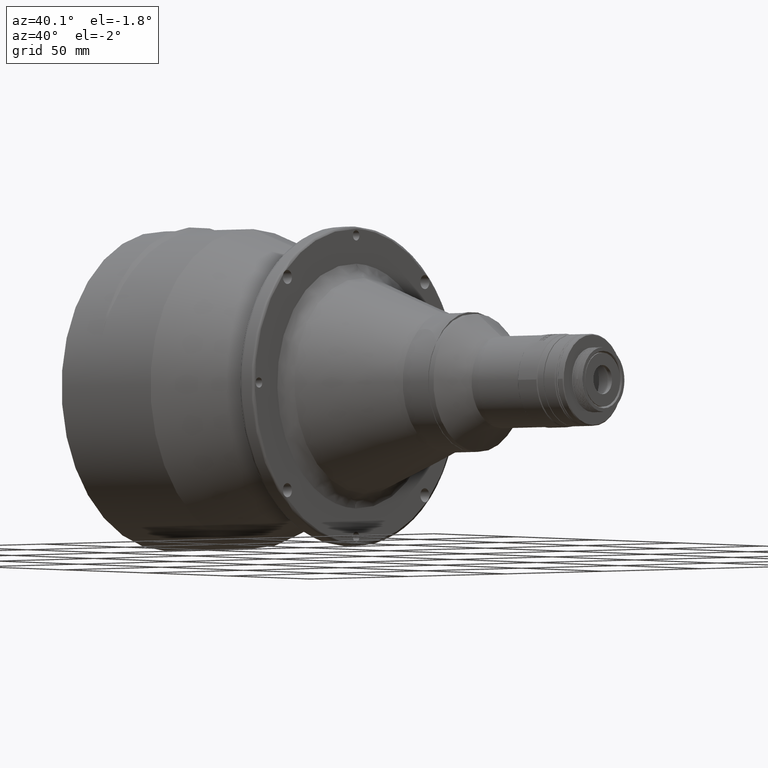
[diagram: clean part render]
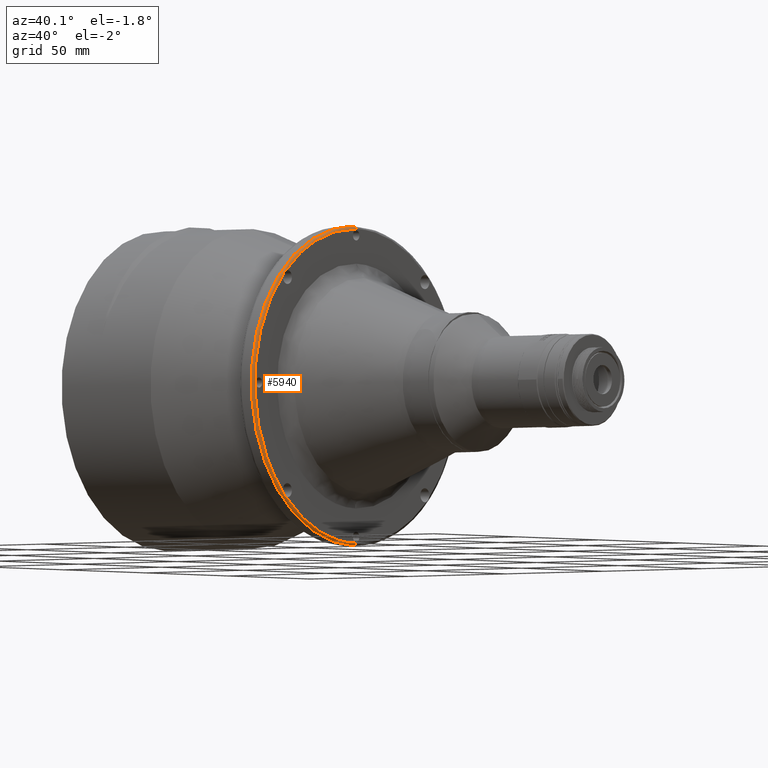
[diagram: same view with one face highlighted and labeled with its STEP entity id]
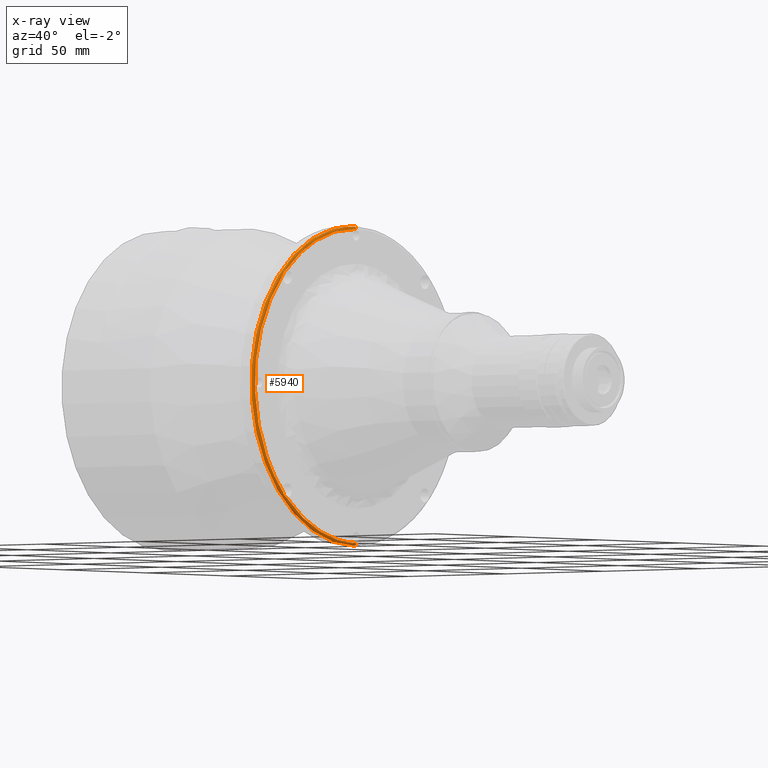
[diagram: x-ray of the same camera — body ghosted, the highlighted face saturated]
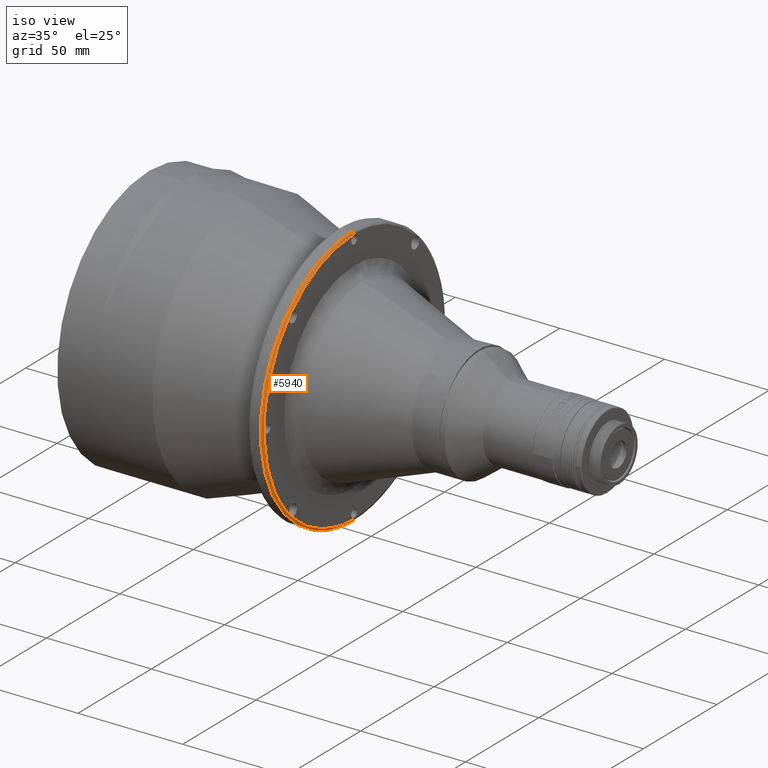
[diagram: same view with one face highlighted and labeled with its STEP entity id]
A machine part, auxiliary view. The second image highlights one B-rep face of the part: STEP entity #5940.
The next image is the same camera in x-ray: the body ghosted, the highlighted face saturated — about 0% of this face is hidden behind the body in this view.
A second angle (iso view) of the same face is appended — the face is thin or edge-on in the first view.
In plain terms, the highlighted face is a freeform B-spline surface patch.
Its self-contained STEP definition (entity closure, byte-faithful):
#74 = CARTESIAN_POINT ( 'NONE',  ( -58.15176095766817355, -42.65216182587655425, 42.48124056063878129 ) ) ;
#250 = CARTESIAN_POINT ( 'NONE',  ( -58.15176095799998990, -9.842066166619165557, -62.53253675466828554 ) ) ;
#276 = ORIENTED_EDGE ( 'NONE', *, *, #4737, .T. ) ;
#334 = CARTESIAN_POINT ( 'NONE',  ( -58.57170719199999809, -125.1264408449999905, 60.73821886200001074 ) ) ;
#445 = CARTESIAN_POINT ( 'NONE',  ( -58.15176095799998279, -4.933317926342504656, -63.12696430477796383 ) ) ;
#538 = CARTESIAN_POINT ( 'NONE',  ( -58.15176095799998990, -57.08639563748993595, 21.07475877388279528 ) ) ;
#630 = CARTESIAN_POINT ( 'NONE',  ( -58.15176095799998990, -47.64105142777417967, 37.06718840850981422 ) ) ;
#642 = CARTESIAN_POINT ( 'NONE',  ( -59.15176095687567681, -2.806050888397907364E-09, 60.67499843884620958 ) ) ;
#729 = CARTESIAN_POINT ( 'NONE',  ( -58.15176095799999700, -59.05271974078382868, 15.38145915108798434 ) ) ;
#819 = CARTESIAN_POINT ( 'NONE',  ( -58.15176095800000411, -61.08519457229164118, -9.029587449783550213 ) ) ;
#895 = CARTESIAN_POINT ( 'NONE',  ( -58.15176095799999700, -16.92201663830093850, 57.31431588072331351 ) ) ;
#919 = CARTESIAN_POINT ( 'NONE',  ( -58.15176095800000411, -60.98538582940739161, 6.143538469644775901 ) ) ;
#989 = CARTESIAN_POINT ( 'NONE',  ( -58.15176095799998990, -3.908932613747129192, 59.55116567174300002 ) ) ;
#1015 = CARTESIAN_POINT ( 'NONE',  ( -58.15176095799998990, -55.71435638722509509, -27.89902966687137109 ) ) ;
#1033 = CARTESIAN_POINT ( 'NONE',  ( -58.15176095799998279, -26.54451006259987267, -57.30263005241693719 ) ) ;
#1089 = CARTESIAN_POINT ( 'NONE',  ( -58.15176095799998279, -13.13798009043212822, 58.25814231455991887 ) ) ;
#1105 = CARTESIAN_POINT ( 'NONE',  ( -58.15176095799998990, -52.11242318959065045, -34.48920994439318832 ) ) ;
#1128 = CARTESIAN_POINT ( 'NONE',  ( -58.15176095800000411, -29.07469425299182575, -56.03712151471894032 ) ) ;
#1182 = CARTESIAN_POINT ( 'NONE',  ( -58.15176095800001121, -31.38230230672270338, 51.06547347449567553 ) ) ;
#1222 = CARTESIAN_POINT ( 'NONE',  ( -58.15176095800000411, -19.17566966193284017, -60.26673485452391077 ) ) ;
#1275 = EDGE_CURVE ( 'NONE', #6905, #5747, #7453, .T. ) ;
#1280 = CARTESIAN_POINT ( 'NONE',  ( -58.15176095799998990, -22.44258117606450753, 55.44952984566160126 ) ) ;
#1382 = CARTESIAN_POINT ( 'NONE',  ( -58.15176095568698855, -42.84329291927785732, -46.06232102100887715 ) ) ;
#1798 = CARTESIAN_POINT ( 'NONE',  ( -58.15176095799999700, -4.754405145101627816, -63.14098732012389803 ) ) ;
#1901 = CARTESIAN_POINT ( 'NONE',  ( -58.15176095800000411, -3.052578221421126781, -63.26818939543202447 ) ) ;
#1998 = CARTESIAN_POINT ( 'NONE',  ( -58.15176095799999700, -47.74797684251571184, 36.93559396730820055 ) ) ;
#2094 = CARTESIAN_POINT ( 'NONE',  ( -58.15176095799998990, -58.71442651729278595, 16.47478402297204880 ) ) ;
#2192 = CARTESIAN_POINT ( 'NONE',  ( -58.15176095800000411, -61.23878339347579214, -7.493165437491753345 ) ) ;
#2290 = CARTESIAN_POINT ( 'NONE',  ( -58.15176095799999700, -56.01301592974465393, 23.57612290175801917 ) ) ;
#2362 = CARTESIAN_POINT ( 'NONE',  ( -58.15176095799999700, -9.410797432444363508, 58.95071317014951973 ) ) ;
#2379 = CARTESIAN_POINT ( 'NONE',  ( -58.15176095799999700, -56.53033276561566112, 22.39478064972809790 ) ) ;
#2454 = CARTESIAN_POINT ( 'NONE',  ( -58.15176095799998990, -36.71699837739195260, 47.51208599681574896 ) ) ;
#2475 = CARTESIAN_POINT ( 'NONE',  ( -58.15176095799998279, -56.79477908220235349, -25.41751923400531510 ) ) ;
#2492 = B_SPLINE_CURVE_WITH_KNOTS ( 'NONE', 3,
 ( #11376, #6739, #9506, #5257, #11475, #630, #1998, #18952, #8226, #12657, #12841, #8418, #17100, #6644, #5457, #18669, #6928, #6831, #11083, #9789, #9894, #3576, #12559, #9601, #3479, #15902, #8038, #2290, #15604, #2379, #5165, #14046, #14231, #538, #6548, #11179, #18571, #14422, #15806, #2094, #729, #8129, #18759, #3775, #17188, #18855, #5357, #5062, #15516, #919, #12751, #3873, #14136, #3669, #11274, #8322, #17285, #9699, #15703, #2192, #14329, #819, #12942, #19242, #5936, #4347, #15996, #14519, #5845, #11764, #8902, #4252, #11667, #10265, #9983, #11857, #19430, #17479, #16280, #17665, #2475, #8797, #7327, #8516, #1015, #7033, #13430, #2577, #7124, #17572, #3973, #14905, #13037, #1105, #7224, #5649, #4065, #19338, #19047, #13131, #4161, #5749, #19142, #17765, #5547, #2766, #8702, #7424, #11569, #10077 ),
 .UNSPECIFIED., .F., .F.,
 ( 4, 1, 1, 1, 1, 2, 2, 1, 1, 1, 1, 2, 2, 1, 1, 1, 1, 2, 2, 1, 1, 1, 1, 2, 2, 1, 1, 1, 2, 2, 1, 1, 1, 2, 2, 1, 1, 2, 2, 2, 1, 1, 2, 2, 1, 1, 1, 2, 2, 1, 1, 1, 2, 2, 1, 1, 1, 1, 2, 2, 1, 1, 1, 1, 2, 2, 1, 1, 1, 1, 2, 2, 1, 1, 1, 1, 2, 2, 4 ),
 ( 0.000000000000000000, 0.03124999999999449746, 0.04687499999999183292, 0.05468749999999059780, 0.05859374999998998024, 0.06054687499998976513, 0.06249999999998955003, 0.09374999999998782918, 0.1093749999999869965, 0.1171874999999865108, 0.1210937499999862055, 0.1230468749999861083, 0.1249999999999860112, 0.1562499999999853451, 0.1718749999999849565, 0.1796874999999848455, 0.1835937499999847899, 0.1855468749999848455, 0.1874999999999848732, 0.2187499999999845401, 0.2343749999999844846, 0.2421874999999845124, 0.2460937499999845957, 0.2480468749999845957, 0.2499999999999846234, 0.2812499999999854561, 0.2968749999999858447, 0.3046874999999860667, 0.3085937499999860112, 0.3124999999999860112, 0.3437499999999854006, 0.3593749999999850675, 0.3671874999999849010, 0.3710937499999848455, 0.3749999999999847344, 0.4062499999999844014, 0.4218749999999842348, 0.4296874999999841238, 0.4374999999999840128, 0.4999999999999832356, 0.5312499999999827915, 0.5468749999999826805, 0.5546874999999825695, 0.5624999999999825695, 0.5937499999999821254, 0.6093749999999820144, 0.6171874999999819034, 0.6210937499999819034, 0.6249999999999819034, 0.6562499999999821254, 0.6718749999999822364, 0.6796874999999823475, 0.6835937499999824585, 0.6874999999999825695, 0.7187499999999827915, 0.7343749999999829026, 0.7421874999999830136, 0.7460937499999830136, 0.7480468749999831246, 0.7499999999999831246, 0.7812499999999849010, 0.7968749999999856781, 0.8046874999999861222, 0.8085937499999863443, 0.8105468749999864553, 0.8124999999999866773, 0.8437499999999884537, 0.8593749999999892308, 0.8671874999999896749, 0.8710937499999898970, 0.8730468749999902300, 0.8749999999999905631, 0.9062499999999943379, 0.9218749999999962252, 0.9296874999999971134, 0.9335937499999973355, 0.9355468749999975575, 0.9374999999999977796, 1.000000000000000000 ),
 .UNSPECIFIED. ) ;
#2552 = CARTESIAN_POINT ( 'NONE',  ( -58.15176095799998990, -24.07409030828857865, 54.77126835718232911 ) ) ;
#2577 = CARTESIAN_POINT ( 'NONE',  ( -58.15176095799998990, -54.36095776578482486, -30.58543710833789220 ) ) ;
#2651 = CARTESIAN_POINT ( 'NONE',  ( -58.15176095799998990, -32.39965975916356200, 50.46103910767353540 ) ) ;
#2690 = CARTESIAN_POINT ( 'NONE',  ( -58.15176095799999700, -20.18759694161460772, -59.91727162588167488 ) ) ;
#2748 = CARTESIAN_POINT ( 'NONE',  ( -58.15176095799998990, -14.53144460077801448, 57.93357765153639605 ) ) ;
#2766 = CARTESIAN_POINT ( 'NONE',  ( -58.15176095800003253, -47.96328614558298398, -40.31885156735932441 ) ) ;
#2788 = CARTESIAN_POINT ( 'NONE',  ( -58.15176095799999700, -37.96121705095995935, -50.21259493476397040 ) ) ;
#2836 = CARTESIAN_POINT ( 'NONE',  ( -58.15176095766817355, -44.30624212096656578, 40.82716026595728920 ) ) ;
#2949 = CARTESIAN_POINT ( 'NONE',  ( -58.15176095570455317, -44.23734687419894840, -44.66821845718941830 ) ) ;
#3182 = CARTESIAN_POINT ( 'NONE',  ( -58.15176095799997569, -13.78316739521924106, -61.76706165331865606 ) ) ;
#3270 = CARTESIAN_POINT ( 'NONE',  ( -59.25159437399999973, 0.000000000000000000, -64.32000572599999089 ) ) ;
#3280 = CARTESIAN_POINT ( 'NONE',  ( -58.15176095799998990, -5.290982903061332010, -63.09758245991553594 ) ) ;
#3311 = VERTEX_POINT ( 'NONE', #19452 ) ;
#3316 = EDGE_CURVE ( 'NONE', #16553, #17437, #11700, .T. ) ;
#3378 = CARTESIAN_POINT ( 'NONE',  ( -58.15176095799998990, -6.005670513447391556, -63.03347551350820055 ) ) ;
#3416 = EDGE_CURVE ( 'NONE', #18497, #3311, #2492, .T. ) ;
#3479 = CARTESIAN_POINT ( 'NONE',  ( -58.15176095799999700, -54.12919710762756154, 27.36889729955321116 ) ) ;
#3576 = CARTESIAN_POINT ( 'NONE',  ( -58.15176095799999700, -53.95823960879874193, 27.68403954037476211 ) ) ;
#3605 = DIRECTION ( 'NONE',  ( -1.110223024628799106E-16, 1.000000000000000000, 0.000000000000000000 ) ) ;
#3669 = CARTESIAN_POINT ( 'NONE',  ( -58.15176095799998279, -61.39614214250406832, 2.302068584257906725 ) ) ;
#3732 = VERTEX_POINT ( 'NONE', #15783 ) ;
#3775 = CARTESIAN_POINT ( 'NONE',  ( -58.15176095800000411, -60.08030248640712045, 11.31733828190260915 ) ) ;
#3855 = CARTESIAN_POINT ( 'NONE',  ( -58.15176095800000411, -15.55548599150045952, 57.68272363439709238 ) ) ;
#3873 = CARTESIAN_POINT ( 'NONE',  ( -58.15176095799998279, -61.13522169437942466, 4.868328155026717674 ) ) ;
#3933 = CARTESIAN_POINT ( 'NONE',  ( -58.15176095790828015, 0.000000000000000000, 60.26078487648292281 ) ) ;
#3952 = CARTESIAN_POINT ( 'NONE',  ( -58.15176095799998990, -33.85271254036162958, 49.54186224338517519 ) ) ;
#3973 = CARTESIAN_POINT ( 'NONE',  ( -58.15176095800000411, -54.18672411843122205, -30.91198258408654809 ) ) ;
#4041 = ORIENTED_EDGE ( 'NONE', *, *, #3416, .F. ) ;
#4043 = CARTESIAN_POINT ( 'NONE',  ( -58.15176095800001121, -25.65888497193845907, 54.06661430948134495 ) ) ;
#4065 = CARTESIAN_POINT ( 'NONE',  ( -58.15176095799999700, -51.33110056846822289, -35.69787579819620049 ) ) ;
#4087 = CARTESIAN_POINT ( 'NONE',  ( -58.15176095800001832, -25.90380719055613312, -57.60358742350309313 ) ) ;
#4139 = CARTESIAN_POINT ( 'NONE',  ( -58.15176095799998990, -24.88381302751438540, 54.41695982951960531 ) ) ;
#4161 = CARTESIAN_POINT ( 'NONE',  ( -58.15176095799997569, -49.88011803271271560, -37.82154608932749085 ) ) ;
#4220 = CARTESIAN_POINT ( 'NONE',  ( -58.18350409470966156, -43.80598079252890642, 41.69664191509214390 ) ) ;
#4230 = CARTESIAN_POINT ( 'NONE',  ( -58.15176095800000411, -4.527838377568472517, 59.50809883228387775 ) ) ;
#4252 = CARTESIAN_POINT ( 'NONE',  ( -58.15176095799998279, -59.00986051308267832, -19.15128841551307204 ) ) ;
#4275 = CARTESIAN_POINT ( 'NONE',  ( -58.15176095800000411, -32.27266801541609453, -54.17832292226994895 ) ) ;
#4347 = CARTESIAN_POINT ( 'NONE',  ( -58.15176095799998279, -60.36388460042886095, -13.59224560260115666 ) ) ;
#4371 = CARTESIAN_POINT ( 'NONE',  ( -58.15176095800000411, -31.47479007192853473, -54.66048976195447295 ) ) ;
#4525 = CARTESIAN_POINT ( 'NONE',  ( -58.15176095766816644, -44.30624212108618565, -44.47716338762558763 ) ) ;
#4553 = CARTESIAN_POINT ( 'NONE',  ( -58.08854053499999992, -124.1601075299999906, -63.90505532600000294 ) ) ;
#4563 = CARTESIAN_POINT ( 'NONE',  ( -58.15176095800000411, -14.69574099898799702, -61.54339080735035594 ) ) ;
#4660 = CARTESIAN_POINT ( 'NONE',  ( -58.15176095799998990, -10.98136190825384517, -62.33946587445440457 ) ) ;
#4722 = CARTESIAN_POINT ( 'NONE',  ( -58.18352611348920078, -43.80517804486486000, -45.34757400788477355 ) ) ;
#4737 = EDGE_CURVE ( 'NONE', #16553, #3311, #15502, .T. ) ;
#4749 = CARTESIAN_POINT ( 'NONE',  ( -58.57170719199999809, 0.000000000000000000, 60.73821886200000364 ) ) ;
#5062 = CARTESIAN_POINT ( 'NONE',  ( -58.15176095799998279, -60.46836761205935318, 9.439258893389222749 ) ) ;
#5094 = B_SPLINE_CURVE_WITH_KNOTS ( 'NONE', 3,
 ( #2836, #14486, #5518, #8483, #4220, #11532, #19106, #17450, #11634, #9950 ),
 .UNSPECIFIED., .F., .F.,
 ( 4, 2, 2, 2, 4 ),
 ( 6.938893903907228378E-18, 0.0006010452545067130432, 0.001202090509013419148, 0.001803135763520125143, 0.002404181018026831356 ),
 .UNSPECIFIED. ) ;
#5165 = CARTESIAN_POINT ( 'NONE',  ( -58.15176095800000411, -56.60249559666745967, 22.22517842809605426 ) ) ;
#5247 = ORIENTED_EDGE ( 'NONE', *, *, #10862, .T. ) ;
#5257 = CARTESIAN_POINT ( 'NONE',  ( -58.15176095799999700, -46.88400482842128270, 37.98076529859832107 ) ) ;
#5357 = CARTESIAN_POINT ( 'NONE',  ( -58.15176095799998990, -60.23769324386170609, 10.57204129906379819 ) ) ;
#5438 = CARTESIAN_POINT ( 'NONE',  ( -58.15176095800001121, -31.29710147362098382, 51.11593237012294111 ) ) ;
#5457 = CARTESIAN_POINT ( 'NONE',  ( -58.15176095799999700, -51.06885866056610013, 32.44196458760479373 ) ) ;
#5518 = CARTESIAN_POINT ( 'NONE',  ( -58.16137285507321053, -44.14884760643148809, 41.19813888990939432 ) ) ;
#5529 = CARTESIAN_POINT ( 'NONE',  ( -58.15176095800000411, -9.106665922338981645, 58.99717281197006713 ) ) ;
#5547 = CARTESIAN_POINT ( 'NONE',  ( -58.15176095799998990, -48.03623503659225236, -40.22778015985624478 ) ) ;
#5568 = CARTESIAN_POINT ( 'NONE',  ( -58.15176095800001121, -25.81200631468740880, -57.64606734154700973 ) ) ;
#5627 = CARTESIAN_POINT ( 'NONE',  ( -58.15176095799999700, -40.90090072721518055, 44.16712201819695593 ) ) ;
#5649 = CARTESIAN_POINT ( 'NONE',  ( -58.15176095800001121, -51.43015065081648629, -35.54761627069895980 ) ) ;
#5673 = CARTESIAN_POINT ( 'NONE',  ( -58.15176095800000411, -21.73228481250202648, -59.36114126163237614 ) ) ;
#5723 = CARTESIAN_POINT ( 'NONE',  ( -58.15176095799998990, -8.041074512473400659, 59.14947240263425243 ) ) ;
#5747 = VERTEX_POINT ( 'NONE', #642 ) ;
#5749 = CARTESIAN_POINT ( 'NONE',  ( -58.15176095799998990, -48.90015187217172610, -39.12658458074468371 ) ) ;
#5823 = CARTESIAN_POINT ( 'NONE',  ( -58.15176095799998990, -4.480236493953957400, 59.51159411200806204 ) ) ;
#5845 = CARTESIAN_POINT ( 'NONE',  ( -58.15176095799999700, -60.06034875371722848, -15.09302780340173200 ) ) ;
#5864 = CARTESIAN_POINT ( 'NONE',  ( -58.15176095799999700, -37.14697449045019084, -50.83881119460603060 ) ) ;
#5936 = CARTESIAN_POINT ( 'NONE',  ( -58.15176095799999700, -60.43721732350773124, -13.21398534992027152 ) ) ;
#5940 = ADVANCED_FACE ( 'NONE', ( #18265 ), #15511, .T. ) ;
#6030 = EDGE_LOOP ( 'NONE', ( #5247, #12495, #11661, #14724, #12473, #14703, #276, #4041 ) ) ;
#6047 = CARTESIAN_POINT ( 'NONE',  ( -58.08854053499999992, 0.000000000000000000, 60.25505220400000184 ) ) ;
#6061 = CARTESIAN_POINT ( 'NONE',  ( -58.15176095800000411, -7.432476362012927495, -62.88388859396416564 ) ) ;
#6237 = CARTESIAN_POINT ( 'NONE',  ( -58.08854053499999992, 0.000000000000000000, -63.90505532600000294 ) ) ;
#6460 = CARTESIAN_POINT ( 'NONE',  ( -58.15176095760179464, 0.000000000000000000, -63.32500154886976418 ) ) ;
#6515 = CARTESIAN_POINT ( 'NONE',  ( -58.56597451979076396, 0.000000000000000000, -64.32500156107056455 ) ) ;
#6548 = CARTESIAN_POINT ( 'NONE',  ( -58.15176095799998990, -57.63432795638860284, 19.67607364429613881 ) ) ;
#6644 = CARTESIAN_POINT ( 'NONE',  ( -58.15176095799997569, -50.97127290693147472, 32.58725045979403490 ) ) ;
#6739 = CARTESIAN_POINT ( 'NONE',  ( -58.15176095799998990, -44.93340250216242282, 40.17567817872686220 ) ) ;
#6831 = CARTESIAN_POINT ( 'NONE',  ( -58.15176095799999700, -51.73021520607119328, 31.44896457006098700 ) ) ;
#6837 = CARTESIAN_POINT ( 'NONE',  ( -58.15176095766816644, -42.65216182620745400, -46.13124368251830987 ) ) ;
#6905 = VERTEX_POINT ( 'NONE', #10481 ) ;
#6907 = CARTESIAN_POINT ( 'NONE',  ( -58.15176095799999700, -26.66965990889801930, 53.60192382256818888 ) ) ;
#6928 = CARTESIAN_POINT ( 'NONE',  ( -58.15176095799999700, -51.16527445767150084, 32.29783869269169827 ) ) ;
#6995 = CARTESIAN_POINT ( 'NONE',  ( -59.15176095687567681, -2.806050888397907778E-09, 60.67499843884620958 ) ) ;
#7011 = CARTESIAN_POINT ( 'NONE',  ( -58.15176095799998990, -31.00653415323083095, 51.28692475562071706 ) ) ;
#7033 = CARTESIAN_POINT ( 'NONE',  ( -58.15176095799998990, -54.95495175505840990, -29.44072868265886456 ) ) ;
#7055 = CARTESIAN_POINT ( 'NONE',  ( -58.15176095800000411, -26.11773734010163395, -57.50395362262275256 ) ) ;
#7106 = CARTESIAN_POINT ( 'NONE',  ( -58.15176095799998990, -39.05630777012388677, 45.74352562685240997 ) ) ;
#7124 = CARTESIAN_POINT ( 'NONE',  ( -58.15176095799998279, -54.27435573052082418, -30.74814075228048793 ) ) ;
#7143 = CARTESIAN_POINT ( 'NONE',  ( -58.15176095800001121, -25.75077983609413934, -57.67433833527995546 ) ) ;
#7202 = CARTESIAN_POINT ( 'NONE',  ( -58.15176095799998990, -4.549878944903914757, 59.50646860340921052 ) ) ;
#7224 = CARTESIAN_POINT ( 'NONE',  ( -58.15176095800000411, -51.65968493281995677, -35.19606933027800721 ) ) ;
#7249 = CARTESIAN_POINT ( 'NONE',  ( -58.15176095799999700, -17.82755266185218090, -60.69767664760276205 ) ) ;
#7303 = CARTESIAN_POINT ( 'NONE',  ( -58.15176095799998279, -14.58493228898336902, 57.92054603035931848 ) ) ;
#7327 = CARTESIAN_POINT ( 'NONE',  ( -58.15176095799998990, -56.72192920056199483, -25.59213131137660113 ) ) ;
#7424 = CARTESIAN_POINT ( 'NONE',  ( -58.15176095799998990, -46.75544135215596242, -41.81814688375188638 ) ) ;
#7453 =( BOUNDED_CURVE ( )  B_SPLINE_CURVE ( 3, ( #11531, #3933, #14485, #6995 ),
 .UNSPECIFIED., .F., .F. ) 
 B_SPLINE_CURVE_WITH_KNOTS ( ( 4, 4 ),
 ( 0.06314145700000538264, 0.9368585429999986003 ),
 .UNSPECIFIED. ) 
 CURVE ( )  GEOMETRIC_REPRESENTATION_ITEM ( )  RATIONAL_B_SPLINE_CURVE ( ( 0.9565783021659872709, 0.7697947703959622245, 0.7697947703959632237, 0.9565783021659898244 ) ) 
 REPRESENTATION_ITEM ( '' )  );
#7550 = CARTESIAN_POINT ( 'NONE',  ( -58.15176095799999700, -8.651048165572168713, -62.71903175996165913 ) ) ;
#7855 =( BOUNDED_CURVE ( )  B_SPLINE_CURVE ( 3, ( #15477, #6515, #14105, #9758 ),
 .UNSPECIFIED., .F., .F. ) 
 B_SPLINE_CURVE_WITH_KNOTS ( ( 4, 4 ),
 ( 0.06314145682634622614, 0.9368585429999922720 ),
 .UNSPECIFIED. ) 
 CURVE ( )  GEOMETRIC_REPRESENTATION_ITEM ( )  RATIONAL_B_SPLINE_CURVE ( ( 0.9565783022773621802, 0.7697947703959636678, 0.7697947703588382540, 0.9565783021659858276 ) ) 
 REPRESENTATION_ITEM ( '' )  );
#7943 = CARTESIAN_POINT ( 'NONE',  ( -58.15176095800000411, -9.651820781846314645, -62.56294304399469297 ) ) ;
#8038 = CARTESIAN_POINT ( 'NONE',  ( -58.15176095799998990, -55.29078809922775406, 25.13558377274594235 ) ) ;
#8129 = CARTESIAN_POINT ( 'NONE',  ( -58.15176095799999700, -59.46716219094209066, 13.91418504137409684 ) ) ;
#8226 = CARTESIAN_POINT ( 'NONE',  ( -58.15176095799999700, -47.85354020547222831, 36.80519426907856229 ) ) ;
#8322 = CARTESIAN_POINT ( 'NONE',  ( -58.15176095799998990, -61.50000923675953857, -2.857802549370008105 ) ) ;
#8393 = CARTESIAN_POINT ( 'NONE',  ( -58.15176095799999700, -14.45120245366564227, 57.95307073455646929 ) ) ;
#8418 = CARTESIAN_POINT ( 'NONE',  ( -58.15176095799999700, -50.27837125225160264, 33.59700298293445542 ) ) ;
#8483 = CARTESIAN_POINT ( 'NONE',  ( -58.17727518902047024, -43.93403449924291237, 41.53675166922958084 ) ) ;
#8498 = CARTESIAN_POINT ( 'NONE',  ( -58.15176095799998990, -36.91793438034954278, 47.36163328341863377 ) ) ;
#8516 = CARTESIAN_POINT ( 'NONE',  ( -58.15176095799998990, -56.31739118511752906, -26.55491377024715405 ) ) ;
#8591 = CARTESIAN_POINT ( 'NONE',  ( -58.15176095799998990, -37.08810286212680296, 47.23337212595431822 ) ) ;
#8682 = CARTESIAN_POINT ( 'NONE',  ( -58.15176095799999700, -21.02346415911964428, 55.97885872119336170 ) ) ;
#8702 = CARTESIAN_POINT ( 'NONE',  ( -58.15176095800000411, -47.92559523767252472, -40.36576511326911287 ) ) ;
#8723 = CARTESIAN_POINT ( 'NONE',  ( -58.15176095800000411, -20.12790954518660058, -59.93797945440785924 ) ) ;
#8777 = CARTESIAN_POINT ( 'NONE',  ( -58.15176095799999700, -19.28562461102619707, 56.57373652328774227 ) ) ;
#8778 = CARTESIAN_POINT ( 'NONE',  ( -58.16144140992955158, -44.14832642787421690, -44.84945093214132328 ) ) ;
#8797 = CARTESIAN_POINT ( 'NONE',  ( -58.15176095800000411, -56.74659093795594345, -25.53319095404672368 ) ) ;
#8822 = CARTESIAN_POINT ( 'NONE',  ( -58.15176095800000411, -40.42830562877374234, -48.19732988822610764 ) ) ;
#8902 = CARTESIAN_POINT ( 'NONE',  ( -58.15176095799998990, -59.25700733875797255, -18.29657370815036543 ) ) ;
#8925 = CARTESIAN_POINT ( 'NONE',  ( -58.15176095766816644, -42.65216182620745400, -46.13124368251830987 ) ) ;
#9110 = CARTESIAN_POINT ( 'NONE',  ( -59.25159437399999973, 0.000000000000000000, 60.67000260400000400 ) ) ;
#9408 = CARTESIAN_POINT ( 'NONE',  ( -58.15176095799999700, -4.677711033238105998, -63.14685406089676434 ) ) ;
#9489 = CARTESIAN_POINT ( 'NONE',  ( -58.15675679200000303, -122.8003331670000051, 59.57516502200001440 ) ) ;
#9506 = CARTESIAN_POINT ( 'NONE',  ( -58.15176095799999700, -45.85175950618470608, 39.17864328985469768 ) ) ;
#9601 = CARTESIAN_POINT ( 'NONE',  ( -58.15176095799999700, -54.10136810892903725, 27.42043352322372129 ) ) ;
#9699 = CARTESIAN_POINT ( 'NONE',  ( -58.15176095799999700, -61.34749803602628759, -6.207258515627984252 ) ) ;
#9758 = CARTESIAN_POINT ( 'NONE',  ( -58.15176095760180175, 0.000000000000000000, -63.32500154886976418 ) ) ;
#9789 = CARTESIAN_POINT ( 'NONE',  ( -58.15176095799999700, -53.34544210218490434, 28.78412997760819891 ) ) ;
#9876 = CARTESIAN_POINT ( 'NONE',  ( -58.15176095800001121, -25.48846613392101546, 54.14458815352501375 ) ) ;
#9894 = CARTESIAN_POINT ( 'NONE',  ( -58.15176095799999700, -53.75607427885842782, 28.05200749419142525 ) ) ;
#9922 = CARTESIAN_POINT ( 'NONE',  ( -58.15176095766817355, -44.30624212096656578, 40.82716026595728920 ) ) ;
#9950 = CARTESIAN_POINT ( 'NONE',  ( -58.15176095766817355, -42.65216182587655425, 42.48124056063878129 ) ) ;
#9962 = CARTESIAN_POINT ( 'NONE',  ( -58.15176095799998990, -35.50114600052168612, 48.39948992900045965 ) ) ;
#9983 = CARTESIAN_POINT ( 'NONE',  ( -58.15176095800001832, -58.78904498826540959, -19.88362139937588324 ) ) ;
#10058 = CARTESIAN_POINT ( 'NONE',  ( -58.15176095800000411, -19.87280062306792772, 56.37575251582530456 ) ) ;
#10077 = CARTESIAN_POINT ( 'NONE',  ( -58.15176095766816644, -44.30624212108618565, -44.47716338762558763 ) ) ;
#10155 = CARTESIAN_POINT ( 'NONE',  ( -58.15176095799998990, -31.21001190169013029, 51.16738477710219968 ) ) ;
#10195 = CARTESIAN_POINT ( 'NONE',  ( -58.15176095799999700, -20.48575092817208798, -59.81303422213306220 ) ) ;
#10244 = CARTESIAN_POINT ( 'NONE',  ( -58.15176095800001832, -9.360117873130635147, 58.95853870474560665 ) ) ;
#10265 = CARTESIAN_POINT ( 'NONE',  ( -58.15176095800002543, -58.82683122399645015, -19.76016174838608563 ) ) ;
#10290 = CARTESIAN_POINT ( 'NONE',  ( -58.15176095799999700, -24.77132385614231680, -58.12468015239233665 ) ) ;
#10445 = CARTESIAN_POINT ( 'NONE',  ( -58.16137285503579335, -43.02314045012187194, -45.97384916785421893 ) ) ;
#10481 = CARTESIAN_POINT ( 'NONE',  ( -58.15176095760180885, 0.000000000000000000, 59.67499842686975597 ) ) ;
#10487 = CARTESIAN_POINT ( 'NONE',  ( -58.15176095799999700, -30.48571133939004696, -55.24818278864800192 ) ) ;
#10572 = CARTESIAN_POINT ( 'NONE',  ( -59.25159437399999973, -124.9900083309999985, -64.32000572599999089 ) ) ;
#10669 = CARTESIAN_POINT ( 'NONE',  ( -58.15675679200000303, 0.000000000000000000, -63.22516814400001550 ) ) ;
#10680 = AXIS2_PLACEMENT_3D ( 'NONE', #17127, #18694, #3605 ) ;
#10768 = CARTESIAN_POINT ( 'NONE',  ( -58.57170719199999809, -125.1264408449999905, -64.38822198400001184 ) ) ;
#10783 = CARTESIAN_POINT ( 'NONE',  ( -58.15176095799999700, -10.22224599802164668, -62.47020515540757657 ) ) ;
#10800 = B_SPLINE_CURVE_WITH_KNOTS ( 'NONE', 3,
 ( #18739, #11253, #15884, #17743, #989, #17552, #13209, #5823, #4230, #7202, #11549, #15972, #5723, #11453, #5529, #13109, #10244, #2362, #14790, #17461, #13309, #1089, #16261, #11647, #8393, #2748, #7303, #19320, #3855, #895, #19030, #8777, #19220, #10058, #17648, #16071, #11746, #8682, #1280, #2552, #4139, #17363, #9876, #14403, #19121, #4043, #6907, #12920, #18928, #14689, #7011, #10155, #5438, #16169, #1182, #2651, #3952, #9962, #14597, #2454, #8498, #14499, #13018, #8591, #7106, #5627, #13409 ),
 .UNSPECIFIED., .F., .F.,
 ( 4, 1, 1, 1, 1, 1, 2, 2, 1, 1, 1, 1, 1, 2, 2, 1, 1, 1, 1, 1, 2, 2, 1, 1, 1, 1, 1, 2, 2, 1, 1, 1, 1, 1, 2, 2, 1, 1, 1, 1, 1, 2, 2, 1, 1, 1, 1, 1, 2, 2, 4 ),
 ( 0.000000000000000000, 0.06250000000000034694, 0.09375000000000054123, 0.1093750000000005967, 0.1171875000000005967, 0.1210937500000006245, 0.1230468750000006106, 0.1250000000000005829, 0.1875000000000000833, 0.2187499999999998612, 0.2343749999999998057, 0.2421874999999998335, 0.2460937499999999167, 0.2480468749999999722, 0.2500000000000000000, 0.3125000000000003886, 0.3437500000000007216, 0.3593750000000008327, 0.3671875000000009437, 0.3710937500000009437, 0.3730468750000008882, 0.3750000000000008327, 0.4374999999999987788, 0.4687499999999978351, 0.4843749999999971689, 0.4921874999999967248, 0.4960937499999964473, 0.4980468749999962808, 0.4999999999999961142, 0.5624999999999932276, 0.5937499999999917843, 0.6093749999999910072, 0.6171874999999908962, 0.6210937499999907851, 0.6230468749999906741, 0.6249999999999905631, 0.6874999999999890088, 0.7187499999999882316, 0.7343749999999877875, 0.7421874999999875655, 0.7460937499999872324, 0.7480468749999871214, 0.7499999999999870104, 0.8124999999999856781, 0.8437499999999846789, 0.8593749999999840128, 0.8671874999999836797, 0.8710937499999835687, 0.8730468749999836797, 0.8749999999999837907, 1.000000000000000000 ),
 .UNSPECIFIED. ) ;
#10862 = EDGE_CURVE ( 'NONE', #18497, #11321, #5094, .T. ) ;
#11083 = CARTESIAN_POINT ( 'NONE',  ( -58.15176095799999700, -52.49897168166647532, 30.23312124757504549 ) ) ;
#11179 = CARTESIAN_POINT ( 'NONE',  ( -58.15176095799998990, -58.21327406071859656, 18.02208500384167067 ) ) ;
#11253 = CARTESIAN_POINT ( 'NONE',  ( -58.15176095799999700, -0.7635465599916653190, 59.67499843911536317 ) ) ;
#11274 = CARTESIAN_POINT ( 'NONE',  ( -58.15176095799999700, -61.49998152751390279, 0.2406004157399593280 ) ) ;
#11321 = VERTEX_POINT ( 'NONE', #74 ) ;
#11376 = CARTESIAN_POINT ( 'NONE',  ( -58.15176095766817355, -44.30624212096656578, 40.82716026595728920 ) ) ;
#11453 = CARTESIAN_POINT ( 'NONE',  ( -58.15176095799999700, -8.751664439684086361, 59.04972254750305183 ) ) ;
#11475 = CARTESIAN_POINT ( 'NONE',  ( -58.15176095799999700, -47.39033469392555276, 37.37315864774373608 ) ) ;
#11531 = CARTESIAN_POINT ( 'NONE',  ( -58.15176095760180885, 0.000000000000000000, 59.67499842686975597 ) ) ;
#11532 = CARTESIAN_POINT ( 'NONE',  ( -58.18352611347362568, -43.52257244620773946, 41.98017648445031114 ) ) ;
#11549 = CARTESIAN_POINT ( 'NONE',  ( -58.15176095800001121, -5.393355327105204822, 59.44354877976723373 ) ) ;
#11569 = CARTESIAN_POINT ( 'NONE',  ( -58.15176095799998279, -45.56081005723565625, -43.17394244674751036 ) ) ;
#11589 = CARTESIAN_POINT ( 'NONE',  ( -58.15176095800001121, -37.23940469027051847, -50.76862322427169971 ) ) ;
#11634 = CARTESIAN_POINT ( 'NONE',  ( -58.15176095567571934, -42.84321689537294731, 42.41234531356339232 ) ) ;
#11647 = CARTESIAN_POINT ( 'NONE',  ( -58.15176095799999700, -14.26389647343967582, 57.99817415371786922 ) ) ;
#11661 = ORIENTED_EDGE ( 'NONE', *, *, #1275, .T. ) ;
#11667 = CARTESIAN_POINT ( 'NONE',  ( -58.15176095800001121, -58.90050146966686384, -19.51672798034648082 ) ) ;
#11690 = CARTESIAN_POINT ( 'NONE',  ( -58.15176095800000411, -20.90228465860179696, -59.66492598514410162 ) ) ;
#11700 = B_SPLINE_CURVE_WITH_KNOTS ( 'NONE', 3,
 ( #8925, #13354, #8822, #16111, #2788, #17982, #16508, #11589, #19358, #5864, #13055, #14928, #14638, #4275, #11879, #17691, #14542, #4371, #17786, #10487, #1128, #16402, #1033, #7055, #4087, #5568, #7143, #13152, #10290, #19163, #5673, #11690, #10195, #16209, #2690, #8723, #14727, #1222, #7249, #18275, #16897, #15020, #15311, #12466, #4563, #15218, #3182, #15120, #4660, #10783, #250, #7943, #16798, #17000, #15415, #7550, #6061, #3378, #3280, #445, #1798, #9408, #12367, #12076, #1901, #13950, #6460 ),
 .UNSPECIFIED., .F., .F.,
 ( 4, 1, 1, 1, 1, 1, 2, 2, 1, 1, 1, 1, 1, 2, 2, 1, 1, 1, 1, 1, 2, 2, 1, 1, 1, 1, 1, 2, 2, 1, 1, 1, 1, 1, 2, 2, 1, 1, 1, 1, 1, 2, 2, 1, 1, 1, 1, 1, 2, 2, 4 ),
 ( 0.000000000000000000, 0.06250000000000018041, 0.09375000000000015266, 0.1093750000000001527, 0.1171875000000000278, 0.1210937499999998335, 0.1230468749999997363, 0.1249999999999996253, 0.1874999999999969746, 0.2187499999999958367, 0.2343749999999952260, 0.2421874999999949485, 0.2460937499999949207, 0.2480468749999949762, 0.2499999999999950318, 0.3124999999999949485, 0.3437499999999949485, 0.3593749999999948375, 0.3671874999999945599, 0.3710937499999943379, 0.3730468749999943934, 0.3749999999999944489, 0.4374999999999961142, 0.4687499999999969469, 0.4843749999999973910, 0.4921874999999976130, 0.4960937499999976685, 0.4980468749999977240, 0.4999999999999977796, 0.5624999999999981126, 0.5937499999999982236, 0.6093749999999984457, 0.6171874999999984457, 0.6210937499999984457, 0.6230468749999984457, 0.6249999999999984457, 0.6874999999999986677, 0.7187499999999986677, 0.7343749999999986677, 0.7421874999999985567, 0.7460937499999984457, 0.7480468749999984457, 0.7499999999999984457, 0.8125000000000012212, 0.8437500000000025535, 0.8593750000000031086, 0.8671875000000035527, 0.8710937500000036637, 0.8730468750000036637, 0.8750000000000036637, 1.000000000000000000 ),
 .UNSPECIFIED. ) ;
#11746 = CARTESIAN_POINT ( 'NONE',  ( -58.15176095799999700, -20.03834259343453539, 56.31892152059950973 ) ) ;
#11764 = CARTESIAN_POINT ( 'NONE',  ( -58.15176095800000411, -59.71920388759477305, -16.57905473575255684 ) ) ;
#11857 = CARTESIAN_POINT ( 'NONE',  ( -58.15176095800000411, -58.45577197300310957, -20.96078823785781609 ) ) ;
#11879 = CARTESIAN_POINT ( 'NONE',  ( -58.15176095799999700, -31.84388255485649211, -54.43919459594484778 ) ) ;
#12038 = CARTESIAN_POINT ( 'NONE',  ( -58.18350409469395856, -43.52164347541588540, -45.63098235411286652 ) ) ;
#12076 = CARTESIAN_POINT ( 'NONE',  ( -58.15176095799999700, -4.599233532364559451, -63.15278968390225600 ) ) ;
#12367 = CARTESIAN_POINT ( 'NONE',  ( -58.15176095799998990, -4.626577801858533512, -63.15073341631265436 ) ) ;
#12466 = CARTESIAN_POINT ( 'NONE',  ( -58.15176095799998279, -14.75305441420688446, -61.52925743437095463 ) ) ;
#12473 = ORIENTED_EDGE ( 'NONE', *, *, #19447, .T. ) ;
#12495 = ORIENTED_EDGE ( 'NONE', *, *, #15980, .F. ) ;
#12559 = CARTESIAN_POINT ( 'NONE',  ( -58.15176095800000411, -54.04420673054541879, 27.52593040757295029 ) ) ;
#12657 = CARTESIAN_POINT ( 'NONE',  ( -58.15176095799999700, -48.47566920579277649, 36.03304221595970347 ) ) ;
#12751 = CARTESIAN_POINT ( 'NONE',  ( -58.15176095800001121, -61.07719425564878435, 5.378708935152188175 ) ) ;
#12841 = CARTESIAN_POINT ( 'NONE',  ( -58.15176095800000411, -49.32836536804453686, 34.92401012796339899 ) ) ;
#12920 = CARTESIAN_POINT ( 'NONE',  ( -58.15176095799998990, -28.12022105457833021, 52.88829516756152316 ) ) ;
#12942 = CARTESIAN_POINT ( 'NONE',  ( -58.15176095799998990, -60.89208433581842428, -10.55749274723151743 ) ) ;
#13018 = CARTESIAN_POINT ( 'NONE',  ( -58.15176095799998279, -37.06116414758939470, 47.25372435561904894 ) ) ;
#13037 = CARTESIAN_POINT ( 'NONE',  ( -58.15176095800000411, -52.99257847418686396, -33.06042915245186720 ) ) ;
#13055 = CARTESIAN_POINT ( 'NONE',  ( -58.15176095799998990, -36.20345324738802617, -51.55304134767642665 ) ) ;
#13109 = CARTESIAN_POINT ( 'NONE',  ( -58.15176095800001832, -9.284093293428764326, 58.97022924221175799 ) ) ;
#13131 = CARTESIAN_POINT ( 'NONE',  ( -58.15176095799998279, -50.68145372124910608, -36.67485345228245563 ) ) ;
#13152 = CARTESIAN_POINT ( 'NONE',  ( -58.15176095800001121, -25.71820797358398991, -57.68934389373018945 ) ) ;
#13209 = CARTESIAN_POINT ( 'NONE',  ( -58.15176095800001121, -4.408832242622858111, 59.51679542112147914 ) ) ;
#13309 = CARTESIAN_POINT ( 'NONE',  ( -58.15176095799999700, -11.63121024201738862, 58.57636025134603130 ) ) ;
#13354 = CARTESIAN_POINT ( 'NONE',  ( -58.15176095800000411, -41.77665676820589624, -46.97406360853682372 ) ) ;
#13409 = CARTESIAN_POINT ( 'NONE',  ( -58.15176095766817355, -42.65216182587655425, 42.48124056063878129 ) ) ;
#13430 = CARTESIAN_POINT ( 'NONE',  ( -58.15176095799998990, -54.56128343031876682, -30.20496914131741306 ) ) ;
#13647 = CARTESIAN_POINT ( 'NONE',  ( -59.25159437399999973, -124.9900083309999985, 60.67000260400000400 ) ) ;
#13710 = CARTESIAN_POINT ( 'NONE',  ( -58.15176095766816644, -42.65216182620745400, -46.13124368251830987 ) ) ;
#13832 = CIRCLE ( 'NONE', #10680, 62.49999999979494447 ) ;
#13950 = CARTESIAN_POINT ( 'NONE',  ( -58.15176095799998279, -1.527431942996772429, -63.32500156110822331 ) ) ;
#14046 = CARTESIAN_POINT ( 'NONE',  ( -58.15176095800001121, -56.65043847698079560, 22.11203037150605155 ) ) ;
#14105 = CARTESIAN_POINT ( 'NONE',  ( -58.15176095790829436, 0.000000000000000000, -63.91078799862759752 ) ) ;
#14136 = CARTESIAN_POINT ( 'NONE',  ( -58.15176095800001832, -61.16252433027224100, 4.614097883574132197 ) ) ;
#14164 = CARTESIAN_POINT ( 'NONE',  ( -58.15176095760179464, 0.000000000000000000, -63.32500154886976418 ) ) ;
#14231 = CARTESIAN_POINT ( 'NONE',  ( -58.15176095799999700, -56.67386642228873939, 22.05651268152434241 ) ) ;
#14329 = CARTESIAN_POINT ( 'NONE',  ( -58.15176095799998990, -61.21430368813287259, -7.751614214061225638 ) ) ;
#14403 = CARTESIAN_POINT ( 'NONE',  ( -58.15176095800001121, -25.57465665390676079, 54.10520360836523679 ) ) ;
#14422 = CARTESIAN_POINT ( 'NONE',  ( -58.15176095800000411, -58.60203752528421006, 16.83155107459063515 ) ) ;
#14485 = CARTESIAN_POINT ( 'NONE',  ( -58.56597451962609568, 0.000000000000000000, 60.67499843890588807 ) ) ;
#14486 = CARTESIAN_POINT ( 'NONE',  ( -58.15176095571585080, -44.23731945964424739, 41.01829135909470381 ) ) ;
#14499 = CARTESIAN_POINT ( 'NONE',  ( -58.15176095799999700, -37.00389313122227719, 47.29691917642909971 ) ) ;
#14519 = CARTESIAN_POINT ( 'NONE',  ( -58.15176095800000411, -60.28869560115447257, -13.97157369756226331 ) ) ;
#14542 = CARTESIAN_POINT ( 'NONE',  ( -58.15176095800001121, -31.53639616877052632, -54.62374128465522460 ) ) ;
#14597 = CARTESIAN_POINT ( 'NONE',  ( -58.15176095799998279, -36.31366403445899493, 47.81080394529600142 ) ) ;
#14638 = CARTESIAN_POINT ( 'NONE',  ( -58.15176095799999700, -33.12434161493282403, -53.64786197672756174 ) ) ;
#14689 = CARTESIAN_POINT ( 'NONE',  ( -58.15176095799998990, -30.59850366716305459, 51.52394216159139972 ) ) ;
#14703 = ORIENTED_EDGE ( 'NONE', *, *, #3316, .F. ) ;
#14724 = ORIENTED_EDGE ( 'NONE', *, *, #17387, .T. ) ;
#14727 = CARTESIAN_POINT ( 'NONE',  ( -58.15176095799999700, -20.09608617146919229, -59.94899111098852273 ) ) ;
#14790 = CARTESIAN_POINT ( 'NONE',  ( -58.15176095799998279, -9.434282085141633800, 58.94707303440124235 ) ) ;
#14905 = CARTESIAN_POINT ( 'NONE',  ( -58.15176095800000411, -53.70358946850602422, -31.80993929620787242 ) ) ;
#14928 = CARTESIAN_POINT ( 'NONE',  ( -58.15176095800000411, -34.80409952755634606, -52.55206969287258545 ) ) ;
#15020 = CARTESIAN_POINT ( 'NONE',  ( -58.15176095799998990, -15.03943320264166594, -61.45796025784073890 ) ) ;
#15120 = CARTESIAN_POINT ( 'NONE',  ( -58.15176095799998279, -12.49461871842704497, -62.05368298282137118 ) ) ;
#15218 = CARTESIAN_POINT ( 'NONE',  ( -58.15176095799998990, -14.66513567385654859, -61.55091323021452610 ) ) ;
#15301 = CARTESIAN_POINT ( 'NONE',  ( -58.08854053499999992, -124.1601075299999906, 60.25505220400000894 ) ) ;
#15311 = CARTESIAN_POINT ( 'NONE',  ( -58.15176095799999700, -14.83900631564876171, -61.50799637700185230 ) ) ;
#15402 = CARTESIAN_POINT ( 'NONE',  ( -58.15675679200000303, -122.8003331670000051, -63.22516814400001550 ) ) ;
#15415 = CARTESIAN_POINT ( 'NONE',  ( -58.15176095800000411, -9.486797488071159634, -62.58889959415463267 ) ) ;
#15477 = CARTESIAN_POINT ( 'NONE',  ( -59.15176095715675331, -6.409482141104100517E-09, -64.32500156084620357 ) ) ;
#15502 = B_SPLINE_CURVE_WITH_KNOTS ( 'NONE', 3,
 ( #13710, #1382, #10445, #16262, #12038, #4722, #16464, #8778, #2949, #4525 ),
 .UNSPECIFIED., .F., .F.,
 ( 4, 2, 2, 2, 4 ),
 ( 4.046035655711835948E-17, 0.0006010452545084048323, 0.001202090509016769332, 0.001803135763525133724, 0.002404181018033497898 ),
 .UNSPECIFIED. ) ;
#15511 =( BOUNDED_SURFACE ( )  B_SPLINE_SURFACE ( 3, 3, ( 
 ( #16885, #9489, #15402, #10669 ),
 ( #6047, #15301, #4553, #6237 ),
 ( #4749, #334, #10768, #16785 ),
 ( #9110, #13647, #10572, #3270 ) ),
 .UNSPECIFIED., .F., .F., .T. ) 
 B_SPLINE_SURFACE_WITH_KNOTS ( ( 4, 4 ),
 ( 4, 4 ),
 ( 0.000000000000000000, 1.000000000000000000 ),
 ( 0.000000000000000000, 1.000000000000000000 ),
 .UNSPECIFIED. ) 
 GEOMETRIC_REPRESENTATION_ITEM ( )  RATIONAL_B_SPLINE_SURFACE ( (
 ( 1.000000000000000000, 0.3333333333333330373, 0.3333333333333330373, 1.000000000000000000),
 ( 0.7553208711179589807, 0.2517736237059859938, 0.2517736237059859938, 0.7553208711179589807),
 ( 0.7553208711179589807, 0.2517736237059859938, 0.2517736237059859938, 0.7553208711179589807),
 ( 1.000000000000000000, 0.3333333333333330373, 0.3333333333333330373, 1.000000000000000000) ) ) 
 REPRESENTATION_ITEM ( '' )  SURFACE ( )  );
#15516 = CARTESIAN_POINT ( 'NONE',  ( -58.15176095799999700, -60.73779529115959264, 7.922949266924940837 ) ) ;
#15604 = CARTESIAN_POINT ( 'NONE',  ( -58.15176095799999700, -56.36021325242212754, 22.78968012409893262 ) ) ;
#15703 = CARTESIAN_POINT ( 'NONE',  ( -58.15176095799998990, -61.28421658520768034, -6.978893910183837868 ) ) ;
#15783 = CARTESIAN_POINT ( 'NONE',  ( -59.15176095715675331, -6.409482141104099689E-09, -64.32500156084620357 ) ) ;
#15806 = CARTESIAN_POINT ( 'NONE',  ( -58.15176095800000411, -58.67756455593628573, 16.59262539707293271 ) ) ;
#15884 = CARTESIAN_POINT ( 'NONE',  ( -58.15176095800000411, -1.908136334394611833, 59.65369387698677173 ) ) ;
#15902 = CARTESIAN_POINT ( 'NONE',  ( -58.15176095799998990, -54.62402164136429406, 26.44925077474085739 ) ) ;
#15972 = CARTESIAN_POINT ( 'NONE',  ( -58.15176095799999700, -6.617546810448006411, 59.32757364915742215 ) ) ;
#15980 = EDGE_CURVE ( 'NONE', #6905, #11321, #10800, .T. ) ;
#15996 = CARTESIAN_POINT ( 'NONE',  ( -58.15176095800001121, -60.31420071634580893, -13.84430113385885264 ) ) ;
#16071 = CARTESIAN_POINT ( 'NONE',  ( -58.15176095799998279, -20.01238560799506772, 56.32785942004878876 ) ) ;
#16111 = CARTESIAN_POINT ( 'NONE',  ( -58.15176095800001121, -38.79381553726047116, -49.55278762810072379 ) ) ;
#16169 = CARTESIAN_POINT ( 'NONE',  ( -58.15176095800000411, -31.35513559326182076, 51.08158165711135013 ) ) ;
#16209 = CARTESIAN_POINT ( 'NONE',  ( -58.15176095800001121, -20.27710064958735359, -59.88614230943584005 ) ) ;
#16261 = CARTESIAN_POINT ( 'NONE',  ( -58.15176095799998990, -13.88898729846605029, 58.08685922716541938 ) ) ;
#16262 = CARTESIAN_POINT ( 'NONE',  ( -58.17727518898935557, -43.36175322951299904, -45.75903606077446284 ) ) ;
#16280 = CARTESIAN_POINT ( 'NONE',  ( -58.15176095799999700, -57.03293035113021148, -24.83815726273968849 ) ) ;
#16402 = CARTESIAN_POINT ( 'NONE',  ( -58.15176095799999700, -27.39370520122533392, -56.89175903822484770 ) ) ;
#16464 = CARTESIAN_POINT ( 'NONE',  ( -58.17748983750516345, -43.93072290950967584, -45.19147884532433324 ) ) ;
#16508 = CARTESIAN_POINT ( 'NONE',  ( -58.15176095800000411, -37.33005105599654883, -50.69960973082900324 ) ) ;
#16553 = VERTEX_POINT ( 'NONE', #6837 ) ;
#16785 = CARTESIAN_POINT ( 'NONE',  ( -58.57170719199999809, 0.000000000000000000, -64.38822198400002605 ) ) ;
#16798 = CARTESIAN_POINT ( 'NONE',  ( -58.15176095799999700, -9.570253730714023632, -62.57581155864089340 ) ) ;
#16885 = CARTESIAN_POINT ( 'NONE',  ( -58.15675679200000303, 0.000000000000000000, 59.57516502200000730 ) ) ;
#16897 = CARTESIAN_POINT ( 'NONE',  ( -58.15176095799999700, -15.43977677780768332, -61.35618007831900655 ) ) ;
#17000 = CARTESIAN_POINT ( 'NONE',  ( -58.15176095799998990, -9.515868293336710693, -62.58435440124766558 ) ) ;
#17100 = CARTESIAN_POINT ( 'NONE',  ( -58.15176095799998279, -50.74217261808345825, 32.92521531649502009 ) ) ;
#17127 = CARTESIAN_POINT ( 'NONE',  ( -59.15176095687568392, 0.000000000000000000, -1.825001560999999661 ) ) ;
#17188 = CARTESIAN_POINT ( 'NONE',  ( -58.15176095799998990, -60.15988438630840562, 10.94428038287295379 ) ) ;
#17285 = CARTESIAN_POINT ( 'NONE',  ( -58.15176095799998990, -61.46107639714846727, -4.405179203173211100 ) ) ;
#17363 = CARTESIAN_POINT ( 'NONE',  ( -58.15176095799999700, -25.28716642540571513, 54.23601111983249723 ) ) ;
#17387 = EDGE_CURVE ( 'NONE', #5747, #3732, #13832, .T. ) ;
#17437 = VERTEX_POINT ( 'NONE', #14164 ) ;
#17450 = CARTESIAN_POINT ( 'NONE',  ( -58.16144140989223388, -43.02444937035821226, 42.32332486729478660 ) ) ;
#17461 = CARTESIAN_POINT ( 'NONE',  ( -58.15176095800000411, -10.33154105935304123, 58.80737864630067691 ) ) ;
#17479 = CARTESIAN_POINT ( 'NONE',  ( -58.15176095799998990, -57.35764983431957376, -24.02392386928200452 ) ) ;
#17552 = CARTESIAN_POINT ( 'NONE',  ( -58.15176095799999700, -4.242212341484811411, 59.52864053574245418 ) ) ;
#17572 = CARTESIAN_POINT ( 'NONE',  ( -58.15176095800003253, -54.21645477833704518, -30.85653116908467553 ) ) ;
#17648 = CARTESIAN_POINT ( 'NONE',  ( -58.15176095799999700, -19.95655871113114799, 56.34704111391770454 ) ) ;
#17665 = CARTESIAN_POINT ( 'NONE',  ( -58.15176095799998990, -56.86679135157481113, -25.24391455351818792 ) ) ;
#17691 = CARTESIAN_POINT ( 'NONE',  ( -58.15176095800000411, -31.62875265937634950, -54.56854073300821284 ) ) ;
#17743 = CARTESIAN_POINT ( 'NONE',  ( -58.15176095799998990, -3.242213456425117268, 59.59155557077842502 ) ) ;
#17765 = CARTESIAN_POINT ( 'NONE',  ( -58.15176095799999700, -48.14545714755298889, -40.09102675581085862 ) ) ;
#17786 = CARTESIAN_POINT ( 'NONE',  ( -58.15176095800000411, -31.44211319483687106, -54.67994095402141141 ) ) ;
#17982 = CARTESIAN_POINT ( 'NONE',  ( -58.15176095800001832, -37.54107944767372373, -50.53801819727708988 ) ) ;
#18265 = FACE_OUTER_BOUND ( 'NONE', #6030, .T. ) ;
#18275 = CARTESIAN_POINT ( 'NONE',  ( -58.15176095799998990, -16.23842313286094097, -61.14578795447758353 ) ) ;
#18497 = VERTEX_POINT ( 'NONE', #9922 ) ;
#18571 = CARTESIAN_POINT ( 'NONE',  ( -58.15176095799998279, -58.48767004595395491, 17.18954335296359304 ) ) ;
#18669 = CARTESIAN_POINT ( 'NONE',  ( -58.15176095800000411, -51.13378247755736083, 32.34500871931284394 ) ) ;
#18694 = DIRECTION ( 'NONE',  ( 1.000000000000000000, 1.665334536933492218E-16, 0.000000000000000000 ) ) ;
#18739 = CARTESIAN_POINT ( 'NONE',  ( -58.15176095760180885, 0.000000000000000000, 59.67499842686975597 ) ) ;
#18759 = CARTESIAN_POINT ( 'NONE',  ( -58.15176095799999700, -59.88660181575802710, 12.18572692243805733 ) ) ;
#18855 = CARTESIAN_POINT ( 'NONE',  ( -58.15176095799998990, -60.21217616996837307, 10.69537704156426372 ) ) ;
#18928 = CARTESIAN_POINT ( 'NONE',  ( -58.15176095799998990, -29.77814273843058146, 51.98972676926796765 ) ) ;
#18952 = CARTESIAN_POINT ( 'NONE',  ( -58.15176095800002543, -47.81914387144323086, 36.84776115346868863 ) ) ;
#19030 = CARTESIAN_POINT ( 'NONE',  ( -58.15176095799998990, -18.50040487337257389, 56.82972638419544609 ) ) ;
#19047 = CARTESIAN_POINT ( 'NONE',  ( -58.15176095799999700, -51.23082205047284532, -35.84934895467787896 ) ) ;
#19106 = CARTESIAN_POINT ( 'NONE',  ( -58.17748983747419089, -43.36647728360721032, 42.10572134904361974 ) ) ;
#19121 = CARTESIAN_POINT ( 'NONE',  ( -58.15176095800001121, -25.63209904863867195, 54.07890207295093177 ) ) ;
#19142 = CARTESIAN_POINT ( 'NONE',  ( -58.15176095799999700, -48.39890016092235925, -39.77091143016941999 ) ) ;
#19163 = CARTESIAN_POINT ( 'NONE',  ( -58.15176095799999700, -23.38001589246548662, -58.72329881647389271 ) ) ;
#19220 = CARTESIAN_POINT ( 'NONE',  ( -58.15176095799999700, -19.67724088488243339, 56.44231781467295406 ) ) ;
#19242 = CARTESIAN_POINT ( 'NONE',  ( -58.15176095799999700, -60.59997528937152822, -12.33013940310451417 ) ) ;
#19320 = CARTESIAN_POINT ( 'NONE',  ( -58.15176095799999700, -14.60975071772450384, 57.91448307375043925 ) ) ;
#19338 = CARTESIAN_POINT ( 'NONE',  ( -58.15176095799999700, -51.26491645863517732, -35.79795916164571423 ) ) ;
#19358 = CARTESIAN_POINT ( 'NONE',  ( -58.15176095800002543, -37.17892808502297441, -50.81457888191423677 ) ) ;
#19430 = CARTESIAN_POINT ( 'NONE',  ( -58.15176095799998279, -57.97685473701272940, -22.38458183476385699 ) ) ;
#19447 = EDGE_CURVE ( 'NONE', #3732, #17437, #7855, .T. ) ;
#19452 = CARTESIAN_POINT ( 'NONE',  ( -58.15176095766816644, -44.30624212108618565, -44.47716338762558763 ) ) ;